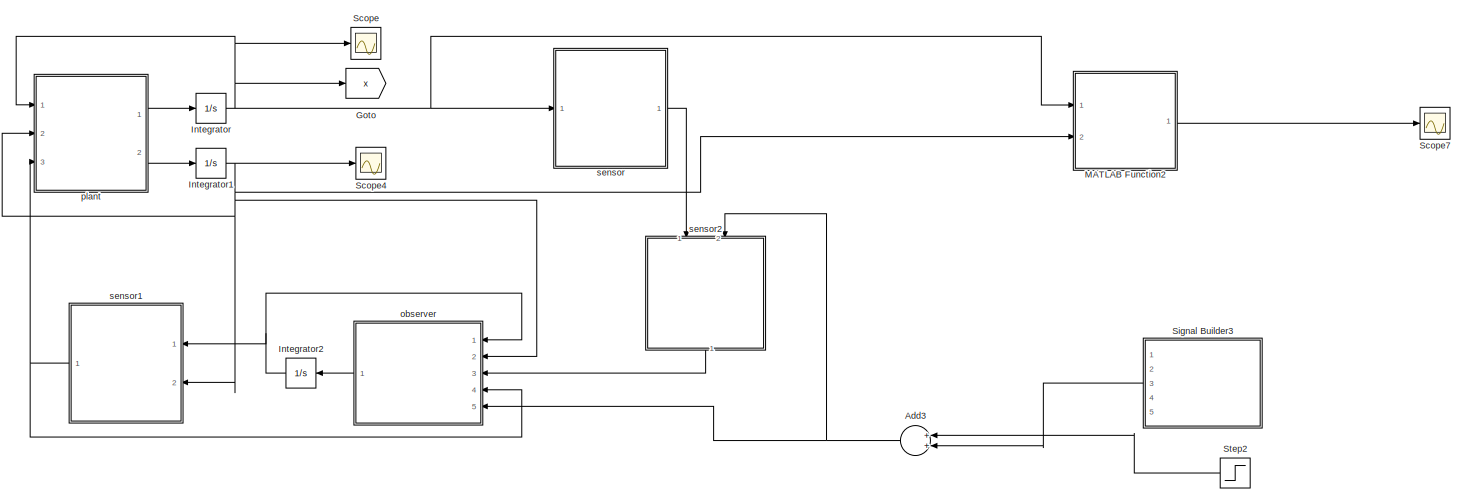
[diagram: root canvas - part 1/2, full width, top band]
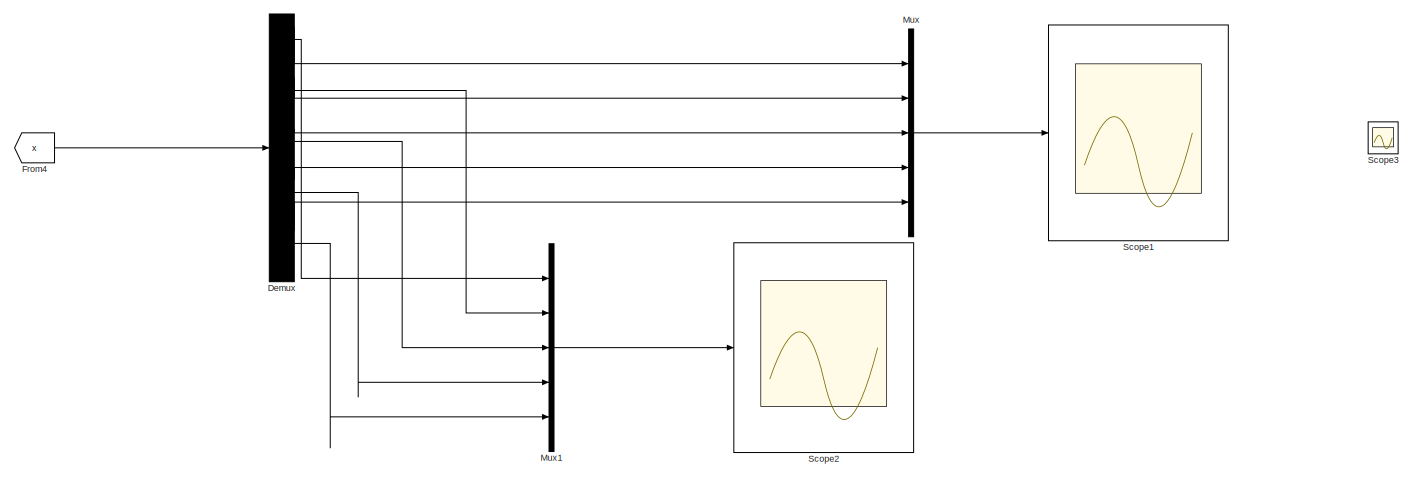
[diagram: root canvas - part 2/2, full width, bottom band]
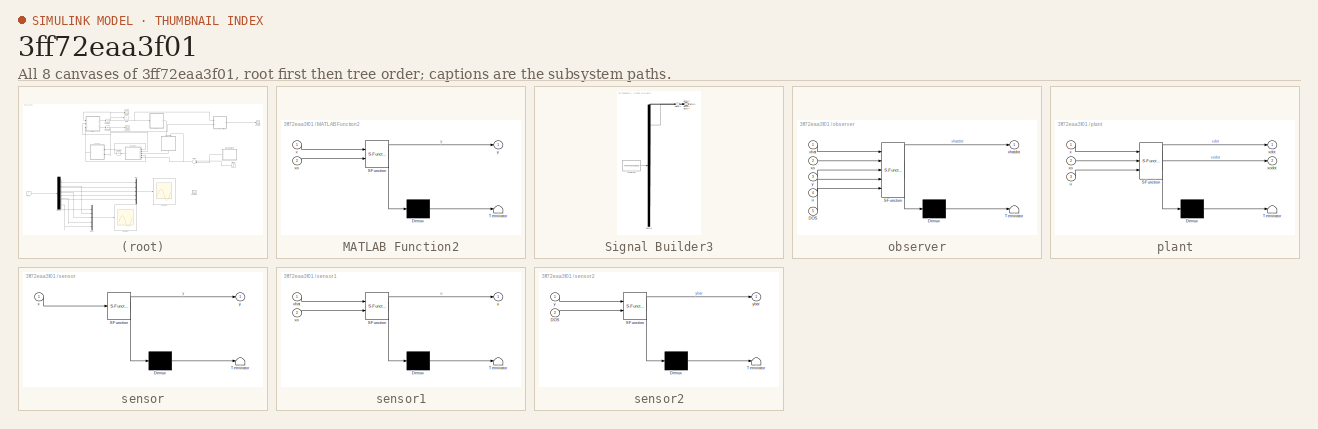
[diagram: thumbnail index - all 8 canvases of the model, root first then tree order]
MODEL slx_3ff72eaa3f01
KIND model
CONFIG AbsTol = auto
CONFIG EnableMultiTasking = off
CONFIG FixedStep = auto
CONFIG MaxStep = auto
CONFIG MinStep = auto
CONFIG RelTol = 1e-3
CONFIG SampleTimeConstraint = Unconstrained
CONFIG Solver = VariableStepAuto
CONFIG SolverName = VariableStepAuto
CONFIG StartTime = 0.0
CONFIG StopTime = 10
BLOCK [Sum] Add3
  InputSameDT = off
  OutDataTypeStr = Inherit: Inherit via internal rule
  Ports = [2, 1]
  SaturateOnIntegerOverflow = off
BLOCK [Demux] Demux
  DisplayOption = bar
  Outputs = 20
  Ports = [1, 20]
BLOCK [From] From4
  GotoTag = x
BLOCK [Goto] Goto
  GotoTag = x
BLOCK [Integrator] Integrator
  InitialCondition = [-10;-9;-8;-7;-6;5;-4;-3;-2;-1;1;2;3;4;5;6;7;8;9;10]
  Ports = [1, 1]
BLOCK [Integrator] Integrator1
  InitialCondition = [-5;1;3;-15]
  Ports = [1, 1]
BLOCK [Integrator] Integrator2
  InitialCondition = [-10;-9;-8;-7;-6;5;-4;-3;-2;-1;1;2;3;4;5;6;7;8;9;10]
  Ports = [1, 1]
BLOCK [SubSystem] MATLAB Function2
  ErrorFcn = Stateflow.Translate.translate
  PermitHierarchicalResolution = ExplicitOnly
  Ports = [2, 1]
  RequestExecContextInheritance = off
  SFBlockType = MATLAB Function
  TreatAsAtomicUnit = on
BLOCK [Demux] MATLAB Function2/ Demux 
  Outputs = 1
  Ports = [1, 1]
BLOCK [S-Function] MATLAB Function2/ SFunction 
  EnableBusSupport = on
  FunctionName = sf_sfun
  PortCounts = [2 2]
  Ports = [2, 2]
  SFcnIsStateOwnerBlock = off
  SFunctionDeploymentMode = off
  Tag = Stateflow S-Function withoutdos 8
BLOCK [Terminator] MATLAB Function2/ Terminator 
BLOCK [Inport] MATLAB Function2/x
  IconDisplay = Port number
BLOCK [Inport] MATLAB Function2/xo
  IconDisplay = Port number
  Port = 2
BLOCK [Outport] MATLAB Function2/y
  IconDisplay = Port number
BLOCK [Mux] Mux
  DisplayOption = bar
  Inputs = 5
  Ports = [5, 1]
BLOCK [Mux] Mux1
  DisplayOption = bar
  Inputs = 5
  Ports = [5, 1]
BLOCK [Scope] Scope
  Floating = off
  NumInputPorts = 1
  Ports = [1]
  ScopeSpecificationString = Simulink.scopes.TimeScopeBlockCfg('CurrentConfiguration', extmgr.ConfigurationSet(extmgr.Configuration('Core','General UI',true),extmgr.Configuration('Core','Source UI',true),extmgr.Configuration('Sources','WiredSimulink',true,'DataLoggingVariableName','ScopeData1'),extmgr.Configuration('Visuals','Time Domain',true,'SerializedDisplays',{struct('MinYLimReal','-60178465208084154599936578467825434370...<+4163ch>
BLOCK [Scope] Scope1
  Floating = off
  NumInputPorts = 1
  Ports = [1]
  ScopeSpecificationString = Simulink.scopes.TimeScopeBlockCfg('CurrentConfiguration', extmgr.ConfigurationSet(extmgr.Configuration('Core','General UI',true),extmgr.Configuration('Core','Source UI',true),extmgr.Configuration('Sources','WiredSimulink',true,'DataLoggingVariableName','x1withoutattack','DataLogging',true,'DataLoggingSaveFormat','StructureWithTime'),extmgr.Configuration('Visuals','Time Domain',true,'SerializedDisp...<+3918ch>
BLOCK [Scope] Scope2
  Floating = off
  NumInputPorts = 1
  Ports = [1]
  ScopeSpecificationString = Simulink.scopes.TimeScopeBlockCfg('CurrentConfiguration', extmgr.ConfigurationSet(extmgr.Configuration('Core','General UI',true),extmgr.Configuration('Core','Source UI',true),extmgr.Configuration('Sources','WiredSimulink',true,'DataLoggingVariableName','x2withoutattack','DataLogging',true,'DataLoggingSaveFormat','StructureWithTime'),extmgr.Configuration('Visuals','Time Domain',true,'SerializedDisp...<+3945ch>
BLOCK [Scope] Scope3
  Floating = off
  NumInputPorts = 1
  Ports = [1]
  ScopeSpecificationString = Simulink.scopes.TimeScopeBlockCfg('CurrentConfiguration', extmgr.ConfigurationSet(extmgr.Configuration('Core','General UI',true),extmgr.Configuration('Core','Source UI',true),extmgr.Configuration('Sources','WiredSimulink',true),extmgr.Configuration('Visuals','Time Domain',true,'SerializedDisplays',{struct('MinYLimReal','-1.00000','MaxYLimReal','1.00000','YLabelReal','','MinYLimMag','0.00000','MaxY...<+1383ch>
BLOCK [Scope] Scope4
  Floating = off
  NumInputPorts = 1
  Ports = [1]
  ScopeSpecificationString = Simulink.scopes.TimeScopeBlockCfg('CurrentConfiguration', extmgr.ConfigurationSet(extmgr.Configuration('Core','General UI',true),extmgr.Configuration('Core','Source UI',true),extmgr.Configuration('Sources','WiredSimulink',true,'DataLoggingVariableName','xo','DataLogging',true,'DataLoggingSaveFormat','StructureWithTime'),extmgr.Configuration('Visuals','Time Domain',true,'SerializedDisplays',{struct...<+1548ch>
BLOCK [Scope] Scope7
  Floating = off
  NumInputPorts = 1
  Ports = [1]
  ScopeSpecificationString = Simulink.scopes.TimeScopeBlockCfg('CurrentConfiguration', extmgr.ConfigurationSet(extmgr.Configuration('Core','General UI',true),extmgr.Configuration('Core','Source UI',true),extmgr.Configuration('Sources','WiredSimulink',true,'DataLoggingVariableName','ewithoutattack','DataLogging',true,'DataLoggingSaveFormat','StructureWithTime'),extmgr.Configuration('Visuals','Time Domain',true,'SerializedDispl...<+1488ch>
BLOCK [SubSystem] Signal Builder3
  ClipboardFcn = sigbuilder_block('clipboard');
  CloseFcn = sigbuilder_block('close');
  ContinueFcn = sigbuilder_block('continue');
  CopyFcn = sigbuilder_block('copy');
  DeleteFcn = sigbuilder_block('delete');
  LoadFcn = sigbuilder_block('load');
  MaskHideContents = on
  ModelCloseFcn = sigbuilder_block('modelClose');
  NameChangeFcn = sigbuilder_block('namechange');
  OpenFcn = sigbuilder_block('open',[5.4 30 1141.2 522.6 ]);
  PauseFcn = sigbuilder_block('pause');
  Ports = [0, 5]
  PreSaveFcn = sigbuilder_block('preSave');
  RequestExecContextInheritance = off
  StartFcn = sigbuilder_block('start');
  StopFcn = sigbuilder_block('stop');
  Tag = STV Subsys
BLOCK [Demux] Signal Builder3/Demux
  Outputs = 5
  Ports = [1, 5]
  Tag = STV Demux
BLOCK [FromWorkspace] Signal Builder3/FromWs
  SampleTime = 0
  Tag = STV FromWs
  VariableName = tuvar
  ZeroCross = on
BLOCK [Outport] Signal Builder3/Signal 1
  IconDisplay = Port number
  Tag = STV Outport
BLOCK [Outport] Signal Builder3/Signal 2
  IconDisplay = Port number
  Port = 2
  Tag = STV Outport
BLOCK [Outport] Signal Builder3/Signal 3
  IconDisplay = Port number
  Port = 3
  Tag = STV Outport
BLOCK [Outport] Signal Builder3/Signal 4
  IconDisplay = Port number
  Port = 4
  Tag = STV Outport
BLOCK [Outport] Signal Builder3/Signal 5
  IconDisplay = Port number
  Port = 5
  Tag = STV Outport
BLOCK [Step] Step2
  After = -1
  SampleTime = 10
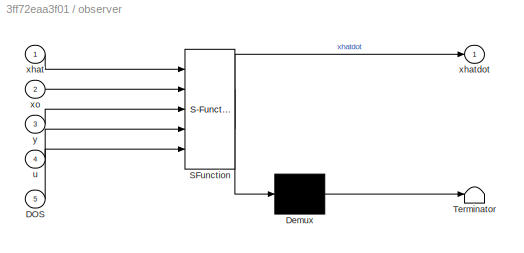
BLOCK [SubSystem] observer
  ErrorFcn = Stateflow.Translate.translate
  PermitHierarchicalResolution = ExplicitOnly
  Ports = [5, 1]
  RequestExecContextInheritance = off
  SFBlockType = MATLAB Function
  TreatAsAtomicUnit = on
BLOCK [Demux] observer/ Demux 
  Outputs = 1
  Ports = [1, 1]
BLOCK [S-Function] observer/ SFunction 
  EnableBusSupport = on
  FunctionName = sf_sfun
  PortCounts = [5 2]
  Ports = [5, 2]
  SFcnIsStateOwnerBlock = off
  SFunctionDeploymentMode = off
  Tag = Stateflow S-Function withoutdos 1
BLOCK [Terminator] observer/ Terminator 
BLOCK [Inport] observer/DOS
  IconDisplay = Port number
  Port = 5
BLOCK [Inport] observer/u
  IconDisplay = Port number
  Port = 4
BLOCK [Inport] observer/xhat
  IconDisplay = Port number
BLOCK [Outport] observer/xhatdot
  IconDisplay = Port number
BLOCK [Inport] observer/xo
  IconDisplay = Port number
  Port = 2
BLOCK [Inport] observer/y
  IconDisplay = Port number
  Port = 3
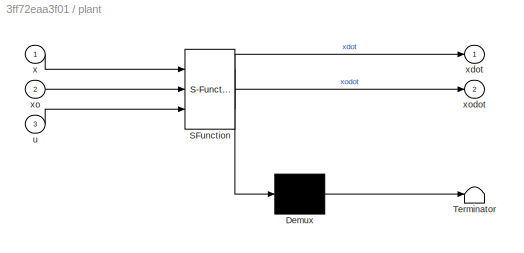
BLOCK [SubSystem] plant
  ErrorFcn = Stateflow.Translate.translate
  PermitHierarchicalResolution = ExplicitOnly
  Ports = [3, 2]
  RequestExecContextInheritance = off
  SFBlockType = MATLAB Function
  TreatAsAtomicUnit = on
BLOCK [Demux] plant/ Demux 
  Outputs = 1
  Ports = [1, 1]
BLOCK [S-Function] plant/ SFunction 
  EnableBusSupport = on
  FunctionName = sf_sfun
  PortCounts = [3 3]
  Ports = [3, 3]
  SFcnIsStateOwnerBlock = off
  SFunctionDeploymentMode = off
  Tag = Stateflow S-Function withoutdos 2
BLOCK [Terminator] plant/ Terminator 
BLOCK [Inport] plant/u
  IconDisplay = Port number
  Port = 3
BLOCK [Inport] plant/x
  IconDisplay = Port number
BLOCK [Outport] plant/xdot
  IconDisplay = Port number
BLOCK [Inport] plant/xo
  IconDisplay = Port number
  Port = 2
BLOCK [Outport] plant/xodot
  IconDisplay = Port number
  Port = 2
BLOCK [SubSystem] sensor
  ErrorFcn = Stateflow.Translate.translate
  PermitHierarchicalResolution = ExplicitOnly
  Ports = [1, 1]
  RequestExecContextInheritance = off
  SFBlockType = MATLAB Function
  TreatAsAtomicUnit = on
BLOCK [Demux] sensor/ Demux 
  Outputs = 1
  Ports = [1, 1]
BLOCK [S-Function] sensor/ SFunction 
  EnableBusSupport = on
  FunctionName = sf_sfun
  PortCounts = [1 2]
  Ports = [1, 2]
  SFcnIsStateOwnerBlock = off
  SFunctionDeploymentMode = off
  Tag = Stateflow S-Function withoutdos 4
BLOCK [Terminator] sensor/ Terminator 
BLOCK [Inport] sensor/x
  IconDisplay = Port number
BLOCK [Outport] sensor/y
  IconDisplay = Port number
BLOCK [SubSystem] sensor1
  ErrorFcn = Stateflow.Translate.translate
  PermitHierarchicalResolution = ExplicitOnly
  Ports = [2, 1]
  RequestExecContextInheritance = off
  SFBlockType = MATLAB Function
  TreatAsAtomicUnit = on
BLOCK [Demux] sensor1/ Demux 
  Outputs = 1
  Ports = [1, 1]
BLOCK [S-Function] sensor1/ SFunction 
  EnableBusSupport = on
  FunctionName = sf_sfun
  PortCounts = [2 2]
  Ports = [2, 2]
  SFcnIsStateOwnerBlock = off
  SFunctionDeploymentMode = off
  Tag = Stateflow S-Function withoutdos 3
BLOCK [Terminator] sensor1/ Terminator 
BLOCK [Outport] sensor1/u
  IconDisplay = Port number
BLOCK [Inport] sensor1/xhat
  IconDisplay = Port number
BLOCK [Inport] sensor1/xo
  IconDisplay = Port number
  Port = 2
BLOCK [SubSystem] sensor2
  ErrorFcn = Stateflow.Translate.translate
  PermitHierarchicalResolution = ExplicitOnly
  Ports = [2, 1]
  RequestExecContextInheritance = off
  SFBlockType = MATLAB Function
  TreatAsAtomicUnit = on
BLOCK [Demux] sensor2/ Demux 
  Outputs = 1
  Ports = [1, 1]
BLOCK [S-Function] sensor2/ SFunction 
  EnableBusSupport = on
  FunctionName = sf_sfun
  PortCounts = [2 2]
  Ports = [2, 2]
  SFcnIsStateOwnerBlock = off
  SFunctionDeploymentMode = off
  Tag = Stateflow S-Function withoutdos 5
BLOCK [Terminator] sensor2/ Terminator 
BLOCK [Inport] sensor2/DOS
  IconDisplay = Port number
  Port = 2
BLOCK [Inport] sensor2/y
  IconDisplay = Port number
BLOCK [Outport] sensor2/ybar
  IconDisplay = Port number
NET Add3:1 -> observer:5, sensor2:2
LINE Demux:1 -> Mux:1
LINE Demux:10 -> Mux1:3
LINE Demux:13 -> Mux:4
LINE Demux:14 -> Mux1:4
LINE Demux:17 -> Mux:5
LINE Demux:18 -> Mux1:5
LINE Demux:2 -> Mux1:1
LINE Demux:5 -> Mux:2
LINE Demux:6 -> Mux1:2
LINE Demux:9 -> Mux:3
LINE From4:1 -> Demux:1
NET Integrator1:1 -> MATLAB Function2:2, Scope4:1, observer:2, plant:2, sensor1:2
NET Integrator2:1 -> observer:1, sensor1:1
NET Integrator:1 -> Goto:1, MATLAB Function2:1, Scope:1, plant:1, sensor:1
LINE MATLAB Function2:1 -> Scope7:1
LINE Mux1:1 -> Scope2:1
LINE Mux:1 -> Scope1:1
LINE Signal Builder3:3 -> Add3:2
LINE Step2:1 -> Add3:1
LINE observer:1 -> Integrator2:1
LINE plant:1 -> Integrator:1
LINE plant:2 -> Integrator1:1
NET sensor1:1 -> observer:4, plant:3
LINE sensor2:1 -> observer:3
LINE sensor:1 -> sensor2:1
note: NET lines group one-source signal fan-out (src -> all destinations, sorted); 1:1 wires keep LINE
CHART observer states=1 transitions=1
  STATE_LABEL 'eML_blk_kernel()'
  STATE_LABEL 'SCRIPT:\nfunction xhatdot = fcn(xhat,xo,y,u,DOS)\nA=[0 1 0 0;-48.6 -1.26 48.6 0;0 0 0 10; 1.95 0 -1.95 0];\nB=[0;21.6;0;0];\nC=[1 0 1 -1;0 1 0 0];\nteta=5;\nH=[\n    55.6482   -7.1985\n    0.2961    4.7174\n    55.4158   15.5540\n    106.5327    8.0593];\n% H=[ \n%     5.0996    1.3229\n%     4.7128   50.1780\n%     8.3432    5.1857\n%     0.4678    1.7959];\nR=[-0.9886 0.0381;0 -1; -1.0405 .0402;-1.0291 0.0783];...<+377ch>'
CHART plant states=1 transitions=1
  STATE_LABEL 'eML_blk_kernel()'
  STATE_LABEL 'SCRIPT:\nfunction [xdot,xodot] = fcn(x,xo,u)\nA=[0 1 0 0;-48.6 -1.26 48.6 0;0 0 0 10; 1.95 0 -1.95 0];\nB=[0;21.6;0;0];\n%Lo=[0 0 0 0 0 0;-1 2-DOS 0 0 0 -1+DOS;-1+DOS -1 2-DOS 0 0 0;0 -1+DOS 0 1-DOS 0 0;0 0 -1 0 1 0;0 0 -1+DOS -1 -1 3-DOS];\nLu=[-1 2 0 0 0 -1;-1 -1 2 0 0 0;0 -1 0 1 0 0;0 0 -1 0 1 0;0 0 -1 -1 -1 3];\nN=5;\nA0=kron(eye(N),A);\nB0=kron(eye(N),B);\nxodot =A*xo;\nxdot=A0*x+B0*u;\n\n'
CHART sensor1 states=1 transitions=1
  STATE_LABEL 'eML_blk_kernel()'
  STATE_LABEL 'SCRIPT:\nfunction u  = fcn(xhat,xo)\nc=50;\nLu=[-1 2 0 0 0 -1;-1 -1 2 0 0 0;0 -1 0 1 0 0;0 0 -1 0 1 0;0 0 -1 -1 -1 3];\nK=[0.2367    0.2141   -0.1209    4.6951];\n\nz1=kron(Lu,K);\nu=-c*z1*[xo;xhat];\n\n'
CHART sensor states=1 transitions=1
  STATE_LABEL 'eML_blk_kernel()'
  STATE_LABEL 'SCRIPT:\nfunction y  = fcn(x)\nC=[1 0 1 -1;0 1 0 0];\nN=5;\nC0=kron(eye(N),C);\ny=C0*x;\n\n'
CHART sensor2 states=1 transitions=1
  STATE_LABEL 'eML_blk_kernel()'
  STATE_LABEL 'SCRIPT:\nfunction ybar  = fcn(y,DOS)\nLo=[ 2-DOS 0 0 0 -1+DOS; -1 2-DOS 0 0 0; -1+DOS 0 1-DOS 0 0; 0 -1 0 1 0; 0 -1+DOS -1 -1 3-DOS];\nH=[3.0849 0.6931;2.4258 34.9384;7.0235 3.5334;.54 1.8007];\nL=[ 2 0 0 0 -1; -1 2 0 0 0; -1 0 1 0 0; 0 -1 0 1 0; 0 -1 -1 -1 3];\nybar=kron(L,H)*y;\n\n'
CHART MATLAB Function2 states=1 transitions=1
  STATE_LABEL 'eML_blk_kernel()'
  STATE_LABEL 'SCRIPT:\nfunction y = fcn(x,xo)\ny=norm(kron(ones(5,1),xo)-x);\n'
